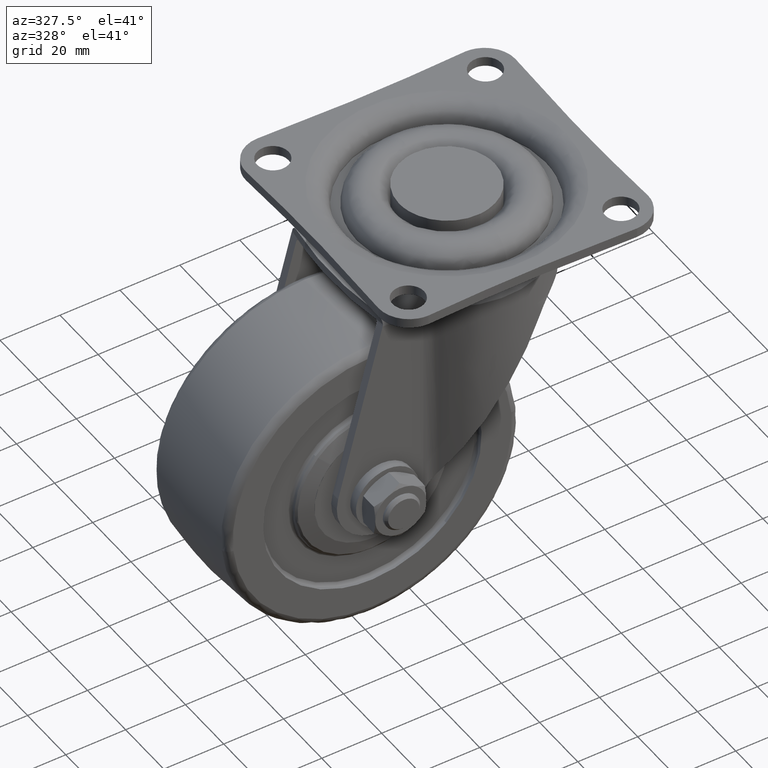
[diagram: clean part render]
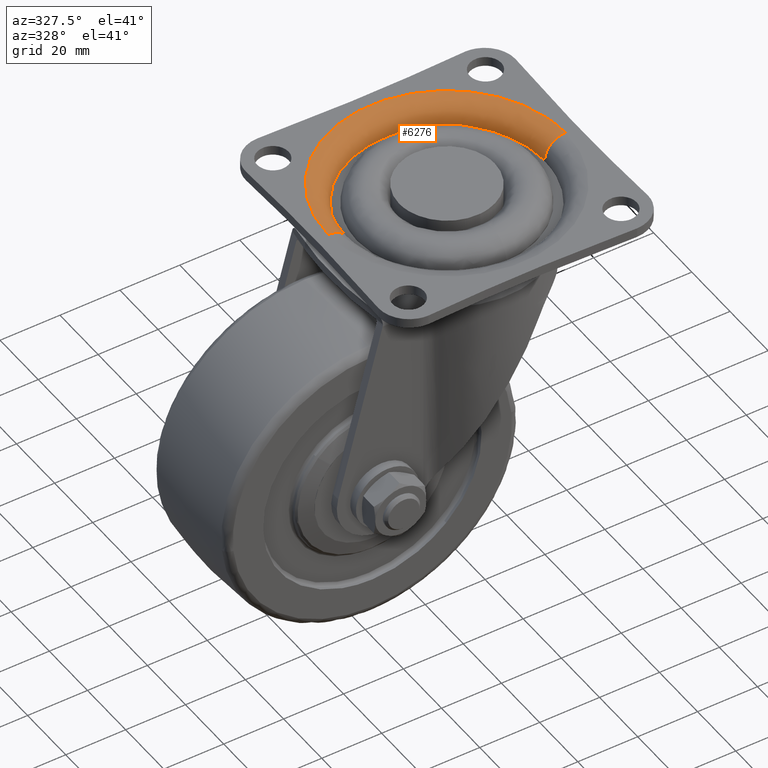
[diagram: same view with one face highlighted and labeled with its STEP entity id]
A machine part, auxiliary view. The second image highlights one B-rep face of the part: STEP entity #6276.
In plain terms, the highlighted face is a freeform B-spline surface patch.
Its self-contained STEP definition (entity closure, byte-faithful):
#5308=CARTESIAN_POINT('',(32.897402354304191,0.413422712269480,-6.999999999708323));
#5309=VERTEX_POINT('',#5308);
#5323=CARTESIAN_POINT('',(2.008455931358241,32.838637376878211,-6.999999999840533));
#5324=VERTEX_POINT('',#5323);
#5325=CARTESIAN_POINT('',(32.897402354304198,0.413422712269480,-6.999999999708323));
#5326=CARTESIAN_POINT('',(32.513360223527933,30.972915749712268,-6.999999999707268));
#5327=CARTESIAN_POINT('',(2.008455931358241,32.838637376878218,-6.999999999840533));
#5335=(BOUNDED_CURVE()B_SPLINE_CURVE(2,(#5325,#5326,#5327),.UNSPECIFIED.,.F.,.U.)B_SPLINE_CURVE_WITH_KNOTS((3,3),(0.502215704078845,0.739333177773349),.UNSPECIFIED.)CURVE()GEOMETRIC_REPRESENTATION_ITEM()RATIONAL_B_SPLINE_CURVE((0.994854295642694,0.721978083056189,0.976072503598414))REPRESENTATION_ITEM(''));
#5336=EDGE_CURVE('',#5309,#5324,#5335,.T.);
#5371=CARTESIAN_POINT('',(-32.897402354304191,-0.413422712269471,-6.999999999708322));
#5372=VERTEX_POINT('',#5371);
#5390=CARTESIAN_POINT('',(-32.899999999999999,0.0,-7.0));
#5391=VERTEX_POINT('',#5390);
#5392=CARTESIAN_POINT('',(2.008455931358241,32.838637376878218,-6.999999999840533));
#5393=CARTESIAN_POINT('',(1.005165345347594,32.899999999974746,-6.999999999845033));
#5394=CARTESIAN_POINT('',(-1.532061E-012,32.899999999975137,-6.999999999849547));
#5395=CARTESIAN_POINT('',(-32.900000000000745,32.899999999987948,-6.999999999997290));
#5396=CARTESIAN_POINT('',(-32.899999999999999,0.0,-7.0));
#5404=(BOUNDED_CURVE()B_SPLINE_CURVE(2,(#5392,#5393,#5394,#5395,#5396),.UNSPECIFIED.,.F.,.U.)B_SPLINE_CURVE_WITH_KNOTS((3,2,3),(0.739333177773349,0.750000000000000,1.0),.UNSPECIFIED.)CURVE()GEOMETRIC_REPRESENTATION_ITEM()RATIONAL_B_SPLINE_CURVE((0.976072503598414,0.987503040414102,1.0,0.707106781186548,1.0))REPRESENTATION_ITEM(''));
#5405=EDGE_CURVE('',#5324,#5391,#5404,.T.);
#5407=CARTESIAN_POINT('',(-32.899999999999999,0.0,-7.0));
#5408=CARTESIAN_POINT('',(-32.900000000000006,-0.206719516986765,-6.999999999854161));
#5409=CARTESIAN_POINT('',(-32.897402354304191,-0.413422712269471,-6.999999999708322));
#5417=(BOUNDED_CURVE()B_SPLINE_CURVE(2,(#5407,#5408,#5409),.UNSPECIFIED.,.F.,.U.)B_SPLINE_CURVE_WITH_KNOTS((3,3),(0.0,0.002215704078845),.UNSPECIFIED.)CURVE()GEOMETRIC_REPRESENTATION_ITEM()RATIONAL_B_SPLINE_CURVE((1.0,0.997404141201636,0.994854295642694))REPRESENTATION_ITEM(''));
#5418=EDGE_CURVE('',#5391,#5372,#5417,.T.);
#6114=CARTESIAN_POINT('',(-39.896849663681152,-0.501384991339567,-1.633897E-015));
#6115=VERTEX_POINT('',#6114);
#6116=CARTESIAN_POINT('',(-32.897402354304191,-0.413422712269471,-6.999999999708322));
#6117=CARTESIAN_POINT('',(-32.897402354596565,-0.413422712216773,-5.116487E-011));
#6118=CARTESIAN_POINT('',(-39.896849663681152,-0.501384991339567,-1.633897E-015));
#6126=(BOUNDED_CURVE()B_SPLINE_CURVE(2,(#6116,#6117,#6118),.UNSPECIFIED.,.F.,.U.)B_SPLINE_CURVE_WITH_KNOTS((3,3),(-1.725134643239084,-0.274865356725681),.UNSPECIFIED.)CURVE()GEOMETRIC_REPRESENTATION_ITEM()RATIONAL_B_SPLINE_CURVE((0.883342149637813,0.624617224136541,0.883342149650385))REPRESENTATION_ITEM(''));
#6127=EDGE_CURVE('',#5372,#6115,#6126,.T.);
#6163=CARTESIAN_POINT('',(39.896849663681152,0.501384991339576,-1.508212E-015));
#6164=VERTEX_POINT('',#6163);
#6178=CARTESIAN_POINT('',(32.897402354304191,0.413422712269480,-6.999999999708323));
#6179=CARTESIAN_POINT('',(32.897402354596551,0.413422712216781,-5.117288E-011));
#6180=CARTESIAN_POINT('',(39.896849663681152,0.501384991339576,-1.508212E-015));
#6188=(BOUNDED_CURVE()B_SPLINE_CURVE(2,(#6178,#6179,#6180),.UNSPECIFIED.,.F.,.U.)B_SPLINE_CURVE_WITH_KNOTS((3,3),(-1.725134643239084,-0.274865356725682),.UNSPECIFIED.)CURVE()GEOMETRIC_REPRESENTATION_ITEM()RATIONAL_B_SPLINE_CURVE((0.883342149637813,0.624617224136541,0.883342149650385))REPRESENTATION_ITEM(''));
#6189=EDGE_CURVE('',#5309,#6164,#6188,.T.);
#6194=CARTESIAN_POINT('',(-32.902781555000729,-1.333813359064977,-7.486759763792726));
#6195=CARTESIAN_POINT('',(-32.908529833860918,-0.876403940218164,-7.486759763792726));
#6196=CARTESIAN_POINT('',(-33.327981094687679,32.500709821306359,-7.486759763792727));
#6197=CARTESIAN_POINT('',(-0.413635636690665,32.914345457997015,-7.486759763792726));
#6198=CARTESIAN_POINT('',(32.500709821306359,33.327981094687694,-7.486759763792727));
#6199=CARTESIAN_POINT('',(32.920161082132495,-0.049132666786088,-7.486759763792726));
#6200=CARTESIAN_POINT('',(32.925909360992051,-0.506542085583326,-7.486759763792725));
#6201=CARTESIAN_POINT('',(-32.343317927142827,-1.311133815710855,0.542760218124274));
#6202=CARTESIAN_POINT('',(-32.348968464936966,-0.861501974345042,0.542760218124275));
#6203=CARTESIAN_POINT('',(-32.761287571185875,31.948082834612539,0.542760218124274));
#6204=CARTESIAN_POINT('',(-0.406602368286672,32.354685202899212,0.542760218124275));
#6205=CARTESIAN_POINT('',(31.948082834612539,32.761287571185875,0.542760218124274));
#6206=CARTESIAN_POINT('',(32.360401940860825,-0.048297237721815,0.542760218124275));
#6207=CARTESIAN_POINT('',(32.366052478654346,-0.497929079038897,0.542760218124274));
#6208=CARTESIAN_POINT('',(-40.369383101763951,-1.636494543427470,-0.016944455277657));
#6209=CARTESIAN_POINT('',(-40.376435832886237,-1.075285575945032,-0.016944455277657));
#6210=CARTESIAN_POINT('',(-40.891072828318649,39.876069555468021,-0.016944455277657));
#6211=CARTESIAN_POINT('',(-0.507501636425314,40.383571191893324,-0.016944455277657));
#6212=CARTESIAN_POINT('',(39.876069555468021,40.891072828318649,-0.016944455277657));
#6213=CARTESIAN_POINT('',(40.390706550899615,-0.060282303032141,-0.016944455277657));
#6214=CARTESIAN_POINT('',(40.397759282021134,-0.621491270453756,-0.016944455277657));
#6222=(BOUNDED_SURFACE()B_SPLINE_SURFACE(2,2,((#6194,#6201,#6208),(#6195,#6202,#6209),(#6196,#6203,#6210),(#6197,#6204,#6211),(#6198,#6205,#6212),(#6199,#6206,#6213),(#6200,#6207,#6214)),.UNSPECIFIED.,.F.,.F.,.U.)B_SPLINE_SURFACE_WITH_KNOTS((3,1,2,1,3),(3,3),(0.0,1.338299497437474,68.253274361521008,135.168249225604510,136.506548722894390),(0.0,12.759109952944771),.UNSPECIFIED.)GEOMETRIC_REPRESENTATION_ITEM()RATIONAL_B_SPLINE_SURFACE(((0.921146729406191,0.604479481453250,0.921146741238825),(0.915813262248594,0.600979527147544,0.915813274012716),(0.643806437242182,0.422481857576905,0.643806445512228),(0.910479795090997,0.597479572841838,0.910479806786608),(0.643806437242182,0.422481857576905,0.643806445512228),(0.915813262248006,0.600979527147158,0.915813274012128),(0.921146729405015,0.604479481452478,0.921146741237648)))REPRESENTATION_ITEM('')SURFACE());
#6223=ORIENTED_EDGE('',*,*,#5405,.F.);
#6224=ORIENTED_EDGE('',*,*,#5336,.F.);
#6225=ORIENTED_EDGE('',*,*,#6189,.T.);
#6226=CARTESIAN_POINT('',(-39.899999999999999,0.0,0.0));
#6227=VERTEX_POINT('',#6226);
#6228=CARTESIAN_POINT('',(-39.899999999999999,0.0,0.0));
#6229=CARTESIAN_POINT('',(-39.900344082070553,2.519751294176431,-2.927253E-019));
#6230=CARTESIAN_POINT('',(-39.552275278132278,6.177248613333759,-7.305532E-018));
#6231=CARTESIAN_POINT('',(-38.260351463467863,11.640118677269820,-3.237150E-017));
#6232=CARTESIAN_POINT('',(-36.730300843154303,15.853390032948310,-6.178965E-017));
#6233=CARTESIAN_POINT('',(-34.614115970449213,19.981960414687460,-1.022756E-016));
#6234=CARTESIAN_POINT('',(-32.314668422375497,23.534388028783070,-1.461568E-016));
#6235=CARTESIAN_POINT('',(-29.186374538244710,27.391906772913099,-2.057394E-016));
#6236=CARTESIAN_POINT('',(-25.493845311610571,30.844714065248699,-2.759379E-016));
#6237=CARTESIAN_POINT('',(-21.189502099639999,33.920662453398450,-3.576548E-016));
#6238=CARTESIAN_POINT('',(-17.403110393146282,35.995588469486513,-4.294637E-016));
#6239=CARTESIAN_POINT('',(-13.266729876209480,37.702138466085003,-5.078435E-016));
#6240=CARTESIAN_POINT('',(-9.678354881687008,38.774744000576007,-5.757909E-016));
#6241=CARTESIAN_POINT('',(-5.686325481655803,39.553577484175960,-6.513323E-016));
#6242=CARTESIAN_POINT('',(-1.473620804165697,39.967605138908269,-7.310012E-016));
#6243=CARTESIAN_POINT('',(3.086457669834186,39.870803809983421,-8.171748E-016));
#6244=CARTESIAN_POINT('',(8.165797921964620,39.168890767531892,-9.130905E-016));
#6245=CARTESIAN_POINT('',(13.199952895135940,37.799076651618513,-1.008073E-015));
#6246=CARTESIAN_POINT('',(18.506265588731232,35.497277980224119,-1.108088E-015));
#6247=CARTESIAN_POINT('',(22.606003491968391,32.984505025048577,-1.185275E-015));
#6248=CARTESIAN_POINT('',(26.068239851683771,30.281106202803411,-1.250389E-015));
#6249=CARTESIAN_POINT('',(29.507726981723810,27.047666615241219,-1.315011E-015));
#6250=CARTESIAN_POINT('',(32.887797151211842,22.856626013649620,-1.378397E-015));
#6251=CARTESIAN_POINT('',(36.093918808660042,17.371876010382771,-1.438341E-015));
#6252=CARTESIAN_POINT('',(38.012572339966809,12.514672499485140,-1.474026E-015));
#6253=CARTESIAN_POINT('',(39.471535511045552,6.673763585721547,-1.500907E-015));
#6254=CARTESIAN_POINT('',(39.865521777192427,3.020924486996403,-1.507920E-015));
#6255=CARTESIAN_POINT('',(39.896849663681152,0.501384991339576,-1.508212E-015));
#6256=B_SPLINE_CURVE_WITH_KNOTS('',3,(#6228,#6229,#6230,#6231,#6232,#6233,#6234,#6235,#6236,#6237,#6238,#6239,#6240,#6241,#6242,#6243,#6244,#6245,#6246,#6247,#6248,#6249,#6250,#6251,#6252,#6253,#6254,#6255),.UNSPECIFIED.,.F.,.U.,(4,1,1,1,1,1,1,1,1,1,1,1,1,1,1,1,1,1,1,1,1,1,1,1,1,4),(0.000000062938724,7.559163689784555,10.972928575718139,16.825224872306020,20.970600381912480,24.872117940401498,29.505172292799781,35.845142289787027,39.990511420268902,45.355070524728752,48.768917118975978,53.401989447463649,56.571947677461992,60.961184050546059,66.081818877392976,70.227154901669650,76.323250813938046,81.687877880594556,87.540125090497668,90.710117687779004,94.855480965805683,101.683147157621510,106.803861244301300,113.875410376256890,117.289223228297800,124.848342977557910),.UNSPECIFIED.);
#6257=EDGE_CURVE('',#6227,#6164,#6256,.T.);
#6258=ORIENTED_EDGE('',*,*,#6257,.F.);
#6259=CARTESIAN_POINT('',(-39.896849663681152,-0.501384991339567,-1.633897E-015));
#6260=CARTESIAN_POINT('',(-39.899999999974405,-0.250702392873301,-8.169484E-016));
#6261=CARTESIAN_POINT('',(-39.899999999999999,0.0,0.0));
#6269=(BOUNDED_CURVE()B_SPLINE_CURVE(2,(#6259,#6260,#6261),.UNSPECIFIED.,.F.,.U.)B_SPLINE_CURVE_WITH_KNOTS((3,3),(0.997784295921753,1.0),.UNSPECIFIED.)CURVE()GEOMETRIC_REPRESENTATION_ITEM()RATIONAL_B_SPLINE_CURVE((0.994854295644069,0.997404141202336,1.0))REPRESENTATION_ITEM(''));
#6270=EDGE_CURVE('',#6115,#6227,#6269,.T.);
#6271=ORIENTED_EDGE('',*,*,#6270,.F.);
#6272=ORIENTED_EDGE('',*,*,#6127,.F.);
#6273=ORIENTED_EDGE('',*,*,#5418,.F.);
#6274=EDGE_LOOP('',(#6223,#6224,#6225,#6258,#6271,#6272,#6273));
#6275=FACE_OUTER_BOUND('',#6274,.T.);
#6276=ADVANCED_FACE('',(#6275),#6222,.T.);